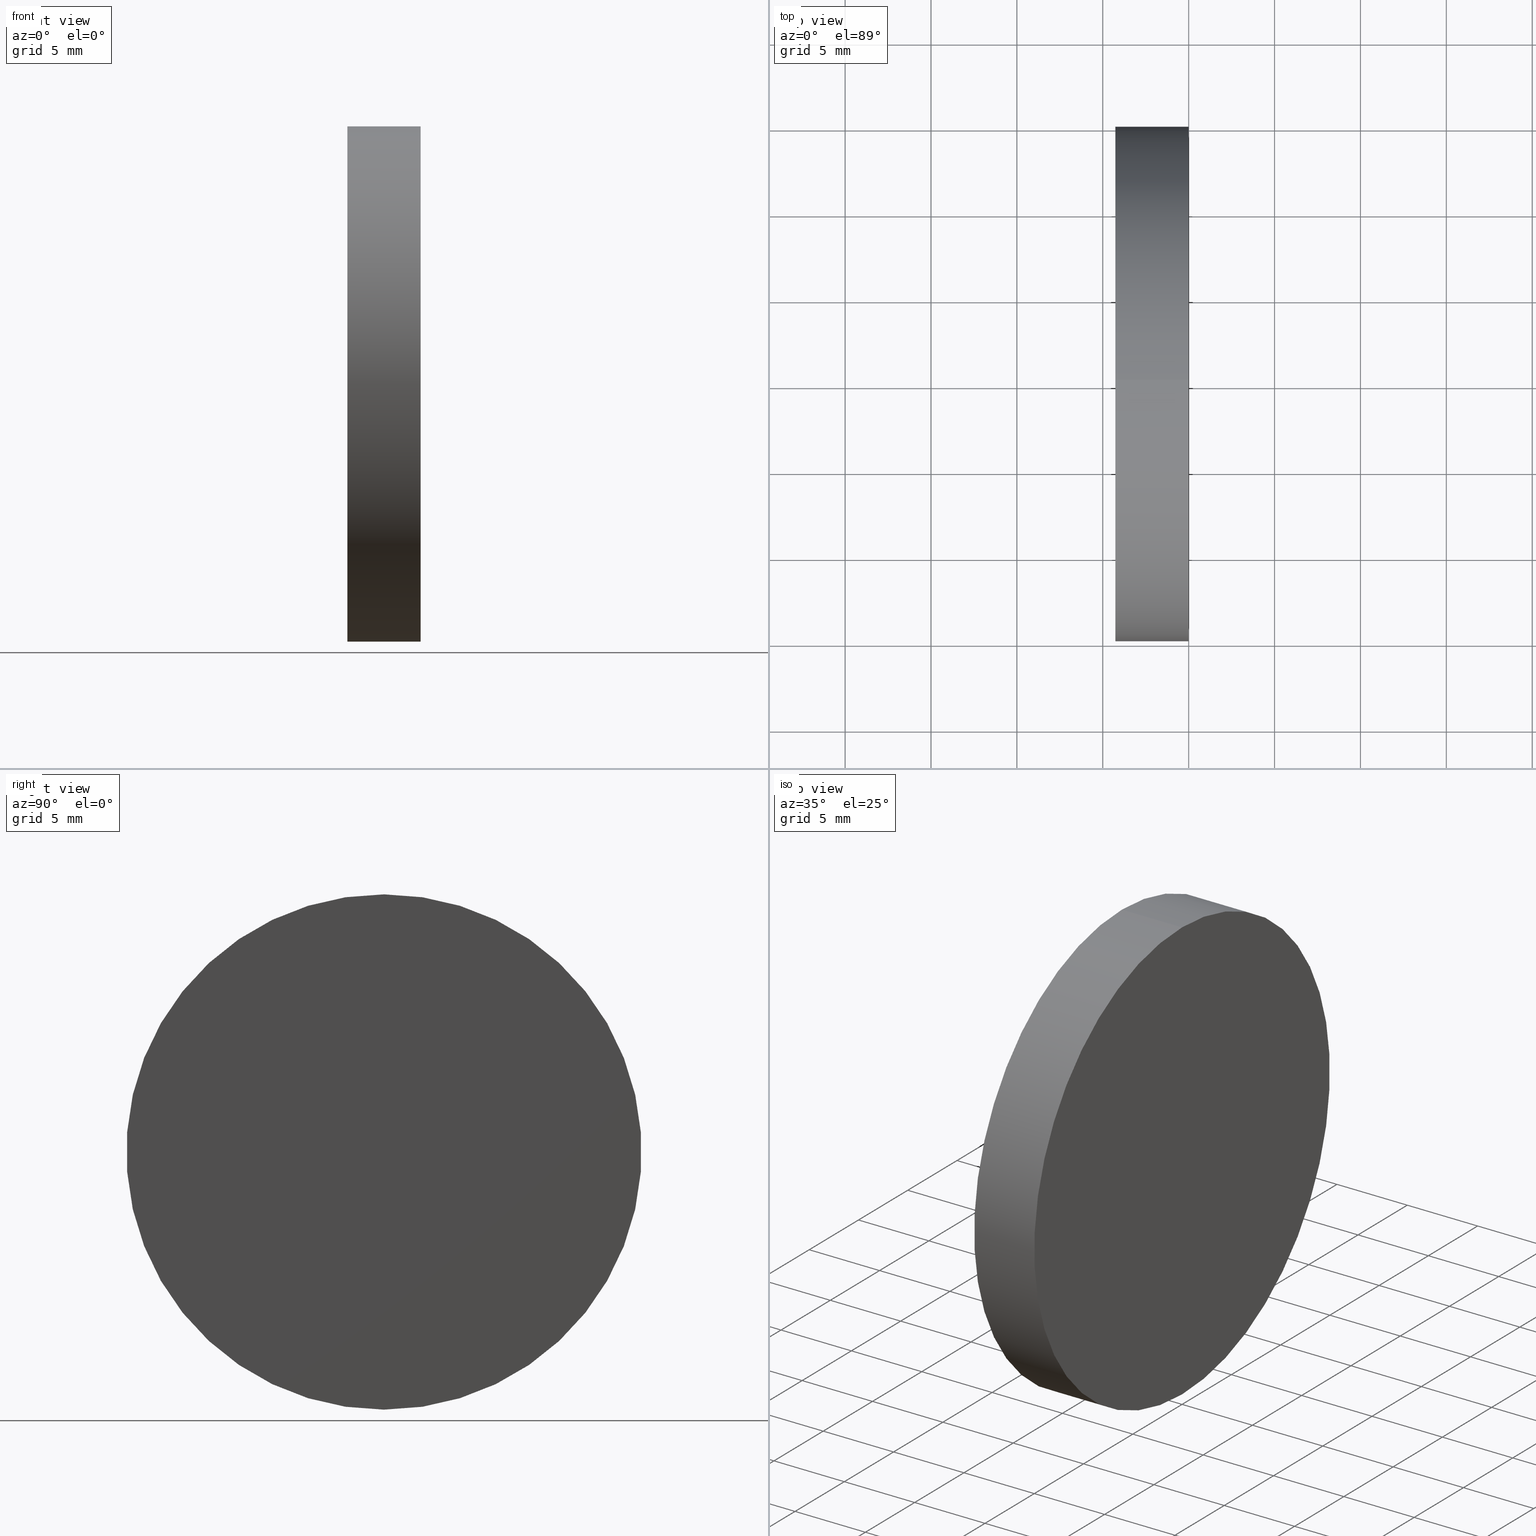
[diagram: canonical four-view strip — front | top / right | iso, engineering-drawing reading convention]
A machine part, canonical four-view strip (front | top / right | iso — engineering-drawing reading convention). The complete STEP part file that produces these views, byte-faithful:
ISO-10303-21;
HEADER;
FILE_DESCRIPTION (( 'STEP AP203' ),
    '1' );
FILE_NAME ('120357.STEP',
    '2024-05-10T06:50:18',
    ( '' ),
    ( '' ),
    'SwSTEP 2.0',
    'SolidWorks 2020',
    '' );
FILE_SCHEMA (( 'CONFIG_CONTROL_DESIGN' ));
ENDSEC;

DATA;
#1 = AXIS2_PLACEMENT_3D ( 'NONE', #196, #40, #26 ) ;
#2 = PERSON_AND_ORGANIZATION ( #82, #174 ) ;
#3 = CIRCLE ( 'NONE', #112, 15.00000000000000000 ) ;
#4 = ADVANCED_FACE ( 'NONE', ( #148 ), #7, .T. ) ;
#5 = ORIENTED_EDGE ( 'NONE', *, *, #180, .T. ) ;
#6 = APPROVAL ( #135, 'δָ��' ) ;
#7 = CYLINDRICAL_SURFACE ( 'NONE', #164, 15.00000000000000000 ) ;
#8 = CC_DESIGN_APPROVAL ( #64, ( #81 ) ) ;
#9 = FACE_OUTER_BOUND ( 'NONE', #83, .T. ) ;
#10 = DIRECTION ( 'NONE',  ( 1.000000000000000000, -0.000000000000000000, -0.000000000000000000 ) ) ;
#11 = PERSON_AND_ORGANIZATION_ROLE ( 'design_supplier' ) ;
#12 = SECURITY_CLASSIFICATION_LEVEL ( 'unclassified' ) ;
#13 = DIRECTION ( 'NONE',  ( 0.000000000000000000, 1.000000000000000000, -1.224646799147353207E-16 ) ) ;
#14 = PERSON_AND_ORGANIZATION ( #82, #174 ) ;
#15 = CARTESIAN_POINT ( 'NONE',  ( -4.269999999999997797, 0.000000000000000000, -15.00000000000000355 ) ) ;
#16 = CC_DESIGN_APPROVAL ( #56, ( #144 ) ) ;
#17 = DIRECTION ( 'NONE',  ( 1.000000000000000000, 0.000000000000000000, 0.000000000000000000 ) ) ;
#18 =( LENGTH_UNIT ( ) NAMED_UNIT ( * ) SI_UNIT ( .MILLI., .METRE. ) );
#19 = AXIS2_PLACEMENT_3D ( 'NONE', #119, #55, #133 ) ;
#20 = EDGE_CURVE ( 'NONE', #85, #194, #190, .T. ) ;
#21 = ORIENTED_EDGE ( 'NONE', *, *, #77, .T. ) ;
#22 = APPROVAL_DATE_TIME ( #166, #64 ) ;
#23 = CC_DESIGN_SECURITY_CLASSIFICATION ( #160, ( #144 ) ) ;
#24 = ORIENTED_EDGE ( 'NONE', *, *, #121, .T. ) ;
#25 = CARTESIAN_POINT ( 'NONE',  ( -67.04999879552782716, 0.000000000000000000, 0.000000000000000000 ) ) ;
#26 = DIRECTION ( 'NONE',  ( -0.000000000000000000, 0.000000000000000000, -1.000000000000000000 ) ) ;
#27 = PERSON_AND_ORGANIZATION ( #82, #174 ) ;
#28 = COORDINATED_UNIVERSAL_TIME_OFFSET ( 8, 0, .AHEAD. ) ;
#29 = CALENDAR_DATE ( 2024, 10, 5 ) ;
#30 = CARTESIAN_POINT ( 'NONE',  ( 0.000000000000000000, 0.000000000000000000, -15.00000000000000000 ) ) ;
#31 = APPLICATION_CONTEXT ( 'configuration controlled 3d designs of mechanical parts and assemblies' ) ;
#32 = CARTESIAN_POINT ( 'NONE',  ( 0.000000000000000000, 0.000000000000000000, 0.000000000000000000 ) ) ;
#33 = PERSON_AND_ORGANIZATION ( #82, #174 ) ;
#34 = AXIS2_PLACEMENT_3D ( 'NONE', #97, #111, #17 ) ;
#35 = ORIENTED_EDGE ( 'NONE', *, *, #42, .F. ) ;
#36 = ORIENTED_EDGE ( 'NONE', *, *, #121, .F. ) ;
#37 = ORIENTED_EDGE ( 'NONE', *, *, #100, .T. ) ;
#38 = LOCAL_TIME ( 14, 50, 18.00000000000000000, #107 ) ;
#39 = DIRECTION ( 'NONE',  ( 1.000000000000000000, -0.000000000000000000, -0.000000000000000000 ) ) ;
#40 = DIRECTION ( 'NONE',  ( 1.000000000000000000, 0.000000000000000000, -0.000000000000000000 ) ) ;
#41 = DATE_AND_TIME ( #149, #65 ) ;
#42 = EDGE_CURVE ( 'NONE', #194, #67, #72, .T. ) ;
#43 = PERSON_AND_ORGANIZATION ( #82, #174 ) ;
#44 = CALENDAR_DATE ( 2024, 10, 5 ) ;
#45 = DIRECTION ( 'NONE',  ( 0.000000000000000000, 1.224646799147352961E-16, 1.000000000000000000 ) ) ;
#46 = DIRECTION ( 'NONE',  ( 0.000000000000000000, 0.000000000000000000, -1.000000000000000000 ) ) ;
#47 = PRODUCT_DEFINITION_SHAPE ( 'NONE', 'NONE',  #81 ) ;
#48 =( NAMED_UNIT ( * ) PLANE_ANGLE_UNIT ( ) SI_UNIT ( $, .RADIAN. ) );
#49 = VECTOR ( 'NONE', #198, 1000.000000000000000 ) ;
#50 = CC_DESIGN_PERSON_AND_ORGANIZATION_ASSIGNMENT ( #27, #122, ( #81 ) ) ;
#51 = DESIGN_CONTEXT ( 'detailed design', #31, 'design' ) ;
#52 = EDGE_LOOP ( 'NONE', ( #150, #21, #36 ) ) ;
#53 = ORIENTED_EDGE ( 'NONE', *, *, #42, .T. ) ;
#54 =( GEOMETRIC_REPRESENTATION_CONTEXT ( 3 ) GLOBAL_UNCERTAINTY_ASSIGNED_CONTEXT ( ( #182 ) ) GLOBAL_UNIT_ASSIGNED_CONTEXT ( ( #18, #48, #76 ) ) REPRESENTATION_CONTEXT ( 'NONE', 'WORKASPACE' ) );
#55 = DIRECTION ( 'NONE',  ( 1.000000000000000000, -0.000000000000000000, -0.000000000000000000 ) ) ;
#56 = APPROVAL ( #156, 'δָ��' ) ;
#57 = CIRCLE ( 'NONE', #176, 64.54999999999999716 ) ;
#58 = APPROVAL_ROLE ( '' ) ;
#59 = CALENDAR_DATE ( 2024, 10, 5 ) ;
#60 = CARTESIAN_POINT ( 'NONE',  ( 0.000000000000000000, 0.000000000000000000, 0.000000000000000000 ) ) ;
#61 = APPROVAL_ROLE ( '' ) ;
#62 = DIRECTION ( 'NONE',  ( -0.000000000000000000, -1.000000000000000000, -0.000000000000000000 ) ) ;
#63 = CIRCLE ( 'NONE', #191, 15.00000000000000000 ) ;
#64 = APPROVAL ( #91, 'δָ��' ) ;
#65 = LOCAL_TIME ( 14, 50, 18.00000000000000000, #170 ) ;
#66 = EDGE_LOOP ( 'NONE', ( #5, #129, #167, #103 ) ) ;
#67 = VERTEX_POINT ( 'NONE', #30 ) ;
#68 = AXIS2_PLACEMENT_3D ( 'NONE', #105, #39, #118 ) ;
#69 = DIRECTION ( 'NONE',  ( 0.000000000000000000, 0.000000000000000000, -1.000000000000000000 ) ) ;
#70 = CARTESIAN_POINT ( 'NONE',  ( 0.000000000000000000, 0.000000000000000000, 0.000000000000000000 ) ) ;
#71 = DATE_AND_TIME ( #44, #147 ) ;
#72 = CIRCLE ( 'NONE', #145, 15.00000000000000000 ) ;
#73 = CARTESIAN_POINT ( 'NONE',  ( -4.269999999999997797, 1.836970198721030378E-15, 15.00000000000000355 ) ) ;
#74 = APPROVAL_ROLE ( '' ) ;
#75 = CARTESIAN_POINT ( 'NONE',  ( -67.04999879552782716, 0.000000000000000000, 0.01246985787228122033 ) ) ;
#76 =( NAMED_UNIT ( * ) SI_UNIT ( $, .STERADIAN. ) SOLID_ANGLE_UNIT ( ) );
#77 = EDGE_CURVE ( 'NONE', #85, #181, #57, .T. ) ;
#78 = TOROIDAL_SURFACE ( 'NONE', #68, -0.01246985787228122033, 64.54999999999999716 ) ;
#79 = VECTOR ( 'NONE', #108, 1000.000000000000000 ) ;
#80 = MANIFOLD_SOLID_BREP ( '��ת1', #110 ) ;
#81 = PRODUCT_DEFINITION ( 'δ֪', '', #144, #51 ) ;
#82 = PERSON ( 'δָ��', 'δָ��', 'δָ��', ('δָ��'), ('δָ��'), ('δָ��') ) ;
#83 = EDGE_LOOP ( 'NONE', ( #37, #53 ) ) ;
#84 = COORDINATED_UNIVERSAL_TIME_OFFSET ( 8, 0, .AHEAD. ) ;
#85 = VERTEX_POINT ( 'NONE', #73 ) ;
#86 = DIRECTION ( 'NONE',  ( 1.000000000000000000, -0.000000000000000000, -0.000000000000000000 ) ) ;
#87 = CARTESIAN_POINT ( 'NONE',  ( -2.500000000000000444, 0.000000000000000000, 0.000000000000000000 ) ) ;
#88 = PERSON_AND_ORGANIZATION_ROLE ( 'classification_officer' ) ;
#89 = PERSON_AND_ORGANIZATION_ROLE ( 'creator' ) ;
#90 = CARTESIAN_POINT ( 'NONE',  ( 0.000000000000000000, 0.000000000000000000, 0.000000000000000000 ) ) ;
#91 = APPROVAL_STATUS ( 'not_yet_approved' ) ;
#92 = CARTESIAN_POINT ( 'NONE',  ( -67.04999879552782716, -1.527117152911162106E-18, -0.01246985787228122033 ) ) ;
#93 = CC_DESIGN_APPROVAL ( #6, ( #160 ) ) ;
#94 = PERSON_AND_ORGANIZATION ( #82, #174 ) ;
#95 = CYLINDRICAL_SURFACE ( 'NONE', #143, 15.00000000000000000 ) ;
#96 = EDGE_CURVE ( 'NONE', #116, #67, #157, .T. ) ;
#97 = CARTESIAN_POINT ( 'NONE',  ( 0.000000000000000000, 0.000000000000000000, 0.000000000000000000 ) ) ;
#98 = PERSON_AND_ORGANIZATION_ROLE ( 'design_owner' ) ;
#99 = LOCAL_TIME ( 14, 50, 18.00000000000000000, #28 ) ;
#100 = EDGE_CURVE ( 'NONE', #67, #194, #3, .T. ) ;
#101 = ORIENTED_EDGE ( 'NONE', *, *, #192, .T. ) ;
#102 = DATE_TIME_ROLE ( 'classification_date' ) ;
#103 = ORIENTED_EDGE ( 'NONE', *, *, #96, .F. ) ;
#104 = APPROVAL_PERSON_ORGANIZATION ( #14, #56, #74 ) ;
#105 = CARTESIAN_POINT ( 'NONE',  ( -67.04999879552782716, 0.000000000000000000, 0.000000000000000000 ) ) ;
#106 = APPROVAL_DATE_TIME ( #41, #6 ) ;
#107 = COORDINATED_UNIVERSAL_TIME_OFFSET ( 8, 0, .AHEAD. ) ;
#108 = DIRECTION ( 'NONE',  ( 1.000000000000000000, -0.000000000000000000, -0.000000000000000000 ) ) ;
#109 = MECHANICAL_CONTEXT ( 'NONE', #200, 'mechanical' ) ;
#110 = CLOSED_SHELL ( 'NONE', ( #4, #161, #193, #134, #177 ) ) ;
#111 = DIRECTION ( 'NONE',  ( 0.000000000000000000, 0.000000000000000000, 1.000000000000000000 ) ) ;
#112 = AXIS2_PLACEMENT_3D ( 'NONE', #32, #173, #159 ) ;
#113 = CC_DESIGN_PERSON_AND_ORGANIZATION_ASSIGNMENT ( #43, #89, ( #144 ) ) ;
#114 = EDGE_LOOP ( 'NONE', ( #130, #101, #146, #35 ) ) ;
#115 = PRODUCT_RELATED_PRODUCT_CATEGORY ( 'detail', '', ( #151 ) ) ;
#116 = VERTEX_POINT ( 'NONE', #15 ) ;
#117 = CIRCLE ( 'NONE', #19, 15.00000000000000000 ) ;
#118 = DIRECTION ( 'NONE',  ( 0.000000000000000000, 0.000000000000000000, -1.000000000000000000 ) ) ;
#119 = CARTESIAN_POINT ( 'NONE',  ( -4.269999999999999574, 0.000000000000000000, 0.000000000000000000 ) ) ;
#120 = CALENDAR_DATE ( 2024, 10, 5 ) ;
#121 = EDGE_CURVE ( 'NONE', #116, #181, #152, .T. ) ;
#122 = PERSON_AND_ORGANIZATION_ROLE ( 'creator' ) ;
#123 = DIRECTION ( 'NONE',  ( 1.000000000000000000, -0.000000000000000000, -0.000000000000000000 ) ) ;
#124 = PERSON_AND_ORGANIZATION ( #82, #174 ) ;
#125 = FACE_OUTER_BOUND ( 'NONE', #114, .T. ) ;
#126 = AXIS2_PLACEMENT_3D ( 'NONE', #75, #62, #46 ) ;
#127 = CC_DESIGN_PERSON_AND_ORGANIZATION_ASSIGNMENT ( #172, #88, ( #160 ) ) ;
#128 = APPROVAL_PERSON_ORGANIZATION ( #124, #6, #61 ) ;
#129 = ORIENTED_EDGE ( 'NONE', *, *, #20, .T. ) ;
#130 = ORIENTED_EDGE ( 'NONE', *, *, #20, .F. ) ;
#131 = APPROVAL_PERSON_ORGANIZATION ( #2, #64, #58 ) ;
#132 = PLANE ( 'NONE',  #1 ) ;
#133 = DIRECTION ( 'NONE',  ( 0.000000000000000000, 0.000000000000000000, -1.000000000000000000 ) ) ;
#134 = ADVANCED_FACE ( 'NONE', ( #125 ), #95, .T. ) ;
#135 = APPROVAL_STATUS ( 'not_yet_approved' ) ;
#136 = CC_DESIGN_DATE_AND_TIME_ASSIGNMENT ( #199, #102, ( #160 ) ) ;
#137 = DIRECTION ( 'NONE',  ( 1.000000000000000000, -0.000000000000000000, -0.000000000000000000 ) ) ;
#138 = APPROVAL_DATE_TIME ( #71, #56 ) ;
#139 = DIRECTION ( 'NONE',  ( 0.000000000000000000, 0.000000000000000000, -1.000000000000000000 ) ) ;
#140 = APPLICATION_PROTOCOL_DEFINITION ( 'international standard', 'config_control_design', 1994, #200 ) ;
#141 = APPLICATION_PROTOCOL_DEFINITION ( 'international standard', 'config_control_design', 1994, #31 ) ;
#142 = CC_DESIGN_DATE_AND_TIME_ASSIGNMENT ( #187, #158, ( #81 ) ) ;
#143 = AXIS2_PLACEMENT_3D ( 'NONE', #70, #169, #69 ) ;
#144 = PRODUCT_DEFINITION_FORMATION_WITH_SPECIFIED_SOURCE ( '�κ�', '', #151, .NOT_KNOWN. ) ;
#145 = AXIS2_PLACEMENT_3D ( 'NONE', #60, #123, #188 ) ;
#146 = ORIENTED_EDGE ( 'NONE', *, *, #96, .T. ) ;
#147 = LOCAL_TIME ( 14, 50, 18.00000000000000000, #84 ) ;
#148 = FACE_OUTER_BOUND ( 'NONE', #66, .T. ) ;
#149 = CALENDAR_DATE ( 2024, 10, 5 ) ;
#150 = ORIENTED_EDGE ( 'NONE', *, *, #192, .F. ) ;
#151 = PRODUCT ( '120357', '120357', '', ( #109 ) ) ;
#152 = CIRCLE ( 'NONE', #126, 64.54999999999999716 ) ;
#153 = DIRECTION ( 'NONE',  ( 0.000000000000000000, 0.000000000000000000, -1.000000000000000000 ) ) ;
#154 = CC_DESIGN_PERSON_AND_ORGANIZATION_ASSIGNMENT ( #33, #98, ( #151 ) ) ;
#155 = FACE_OUTER_BOUND ( 'NONE', #52, .T. ) ;
#156 = APPROVAL_STATUS ( 'not_yet_approved' ) ;
#157 = LINE ( 'NONE', #201, #79 ) ;
#158 = DATE_TIME_ROLE ( 'creation_date' ) ;
#159 = DIRECTION ( 'NONE',  ( 0.000000000000000000, 0.000000000000000000, -1.000000000000000000 ) ) ;
#160 = SECURITY_CLASSIFICATION ( '', '', #12 ) ;
#161 = ADVANCED_FACE ( 'NONE', ( #155 ), #78, .F. ) ;
#162 = TOROIDAL_SURFACE ( 'NONE', #178, -0.01246985787228122033, 64.54999999999999716 ) ;
#163 = CC_DESIGN_PERSON_AND_ORGANIZATION_ASSIGNMENT ( #94, #11, ( #144 ) ) ;
#164 = AXIS2_PLACEMENT_3D ( 'NONE', #90, #137, #139 ) ;
#165 = ORIENTED_EDGE ( 'NONE', *, *, #180, .F. ) ;
#166 = DATE_AND_TIME ( #59, #99 ) ;
#167 = ORIENTED_EDGE ( 'NONE', *, *, #100, .F. ) ;
#168 = CARTESIAN_POINT ( 'NONE',  ( 0.000000000000000000, 1.836970198721029589E-15, 15.00000000000000000 ) ) ;
#169 = DIRECTION ( 'NONE',  ( 1.000000000000000000, -0.000000000000000000, -0.000000000000000000 ) ) ;
#170 = COORDINATED_UNIVERSAL_TIME_OFFSET ( 8, 0, .AHEAD. ) ;
#171 = ADVANCED_BREP_SHAPE_REPRESENTATION ( '120357', ( #80, #34 ), #54 ) ;
#172 = PERSON_AND_ORGANIZATION ( #82, #174 ) ;
#173 = DIRECTION ( 'NONE',  ( 1.000000000000000000, -0.000000000000000000, -0.000000000000000000 ) ) ;
#174 = ORGANIZATION ( 'δָ��', 'δָ��', '' ) ;
#175 = CARTESIAN_POINT ( 'NONE',  ( 0.000000000000000000, 1.836970198721029589E-15, 15.00000000000000000 ) ) ;
#176 = AXIS2_PLACEMENT_3D ( 'NONE', #92, #13, #45 ) ;
#177 = ADVANCED_FACE ( 'NONE', ( #9 ), #132, .T. ) ;
#178 = AXIS2_PLACEMENT_3D ( 'NONE', #25, #86, #153 ) ;
#179 = EDGE_LOOP ( 'NONE', ( #195, #165, #24 ) ) ;
#180 = EDGE_CURVE ( 'NONE', #116, #85, #63, .T. ) ;
#181 = VERTEX_POINT ( 'NONE', #87 ) ;
#182 = UNCERTAINTY_MEASURE_WITH_UNIT (LENGTH_MEASURE( 1.000000000000000082E-05 ), #18, 'distance_accuracy_value', 'NONE');
#183 = LOCAL_TIME ( 14, 50, 18.00000000000000000, #186 ) ;
#184 = CARTESIAN_POINT ( 'NONE',  ( -4.269999999999999574, 0.000000000000000000, 0.000000000000000000 ) ) ;
#185 = FACE_OUTER_BOUND ( 'NONE', #179, .T. ) ;
#186 = COORDINATED_UNIVERSAL_TIME_OFFSET ( 8, 0, .AHEAD. ) ;
#187 = DATE_AND_TIME ( #120, #38 ) ;
#188 = DIRECTION ( 'NONE',  ( 0.000000000000000000, 0.000000000000000000, -1.000000000000000000 ) ) ;
#189 = SHAPE_DEFINITION_REPRESENTATION ( #47, #171 ) ;
#190 = LINE ( 'NONE', #175, #49 ) ;
#191 = AXIS2_PLACEMENT_3D ( 'NONE', #184, #10, #197 ) ;
#192 = EDGE_CURVE ( 'NONE', #85, #116, #117, .T. ) ;
#193 = ADVANCED_FACE ( 'NONE', ( #185 ), #162, .F. ) ;
#194 = VERTEX_POINT ( 'NONE', #168 ) ;
#195 = ORIENTED_EDGE ( 'NONE', *, *, #77, .F. ) ;
#196 = CARTESIAN_POINT ( 'NONE',  ( 0.000000000000000000, 15.00000000000000000, 0.000000000000000000 ) ) ;
#197 = DIRECTION ( 'NONE',  ( 0.000000000000000000, 0.000000000000000000, -1.000000000000000000 ) ) ;
#198 = DIRECTION ( 'NONE',  ( 1.000000000000000000, -0.000000000000000000, -0.000000000000000000 ) ) ;
#199 = DATE_AND_TIME ( #29, #183 ) ;
#200 = APPLICATION_CONTEXT ( 'configuration controlled 3d designs of mechanical parts and assemblies' ) ;
#201 = CARTESIAN_POINT ( 'NONE',  ( 0.000000000000000000, 0.000000000000000000, -15.00000000000000000 ) ) ;
ENDSEC;
END-ISO-10303-21;
